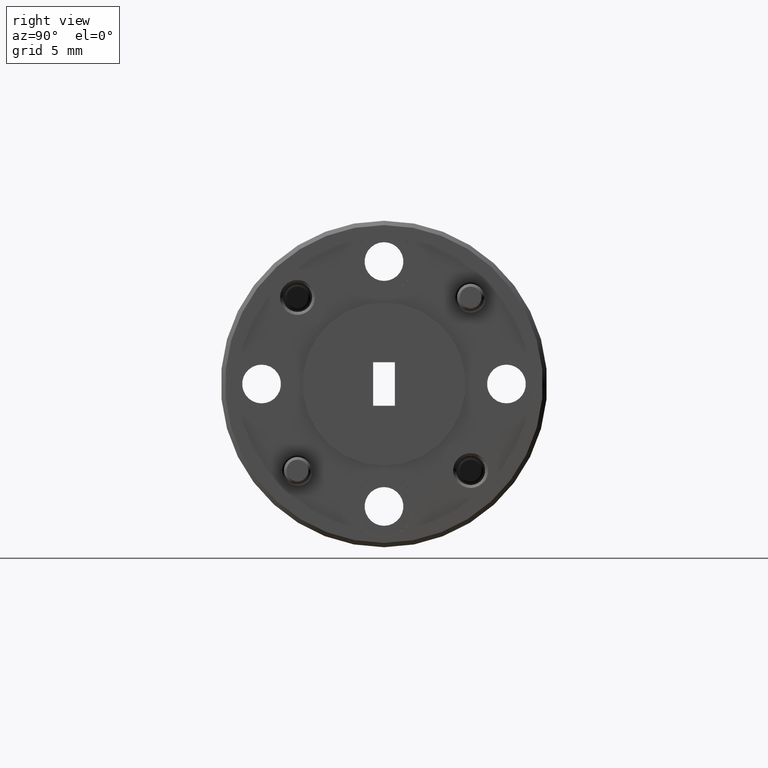
[diagram: clean part render]
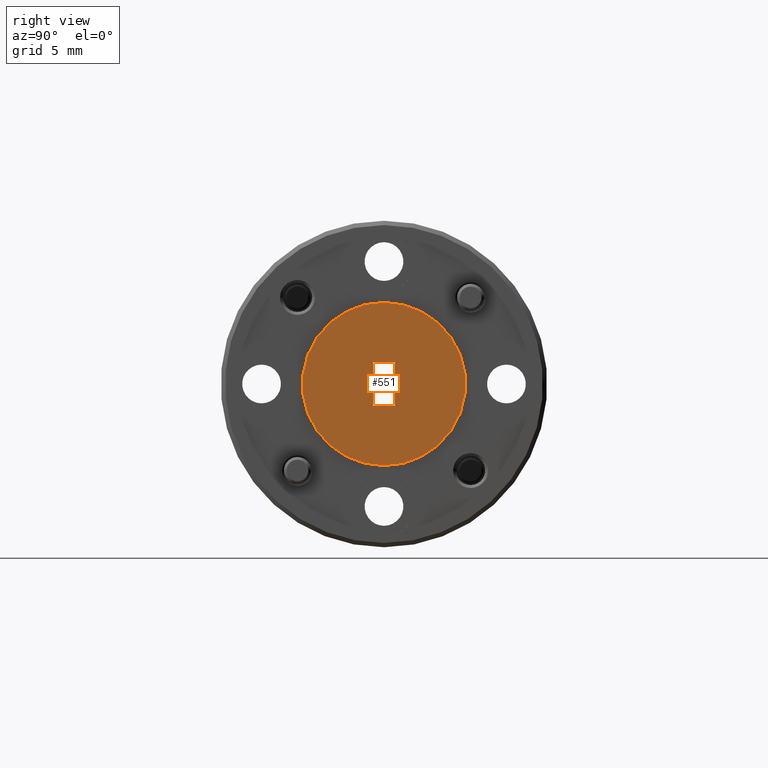
[diagram: same view with one face highlighted and labeled with its STEP entity id]
A machine part, right view. The second image highlights one B-rep face of the part: STEP entity #551.
In plain terms, the highlighted planar face has unit normal (-1, 0, 0).
Its self-contained STEP definition (entity closure, byte-faithful):
#161 = ORIENTED_EDGE ( 'NONE', *, *, #3890, .F. ) ;
#203 = AXIS2_PLACEMENT_3D ( 'NONE', #3169, #1120, #832 ) ;
#278 = DIRECTION ( 'NONE',  ( -0.0000000000000000000, -0.0000000000000000000, -1.000000000000000000 ) ) ;
#309 = LINE ( 'NONE', #2597, #506 ) ;
#337 = ORIENTED_EDGE ( 'NONE', *, *, #3629, .F. ) ;
#346 = VERTEX_POINT ( 'NONE', #1233 ) ;
#426 = VERTEX_POINT ( 'NONE', #4253 ) ;
#471 = ORIENTED_EDGE ( 'NONE', *, *, #2172, .F. ) ;
#506 = VECTOR ( 'NONE', #3289, 39.37007874015748100 ) ;
#542 = CARTESIAN_POINT ( 'NONE',  ( -2.194678697788351700, 0.8116859362712518500, 0.9374824079348078600 ) ) ;
#551 = ADVANCED_FACE ( 'NONE', ( #3674, #3619 ), #2211, .F. ) ;
#639 = ORIENTED_EDGE ( 'NONE', *, *, #1723, .F. ) ;
#655 = AXIS2_PLACEMENT_3D ( 'NONE', #3921, #1935, #1244 ) ;
#688 = EDGE_LOOP ( 'NONE', ( #471, #2057 ) ) ;
#832 = DIRECTION ( 'NONE',  ( 0.0000000000000000000, 0.0000000000000000000, 1.000000000000000000 ) ) ;
#926 = CARTESIAN_POINT ( 'NONE',  ( -2.194678697788352100, 0.7866859362712517200, 0.8874824079348078200 ) ) ;
#1120 = DIRECTION ( 'NONE',  ( -1.000000000000000000, -0.0000000000000000000, -0.0000000000000000000 ) ) ;
#1233 = CARTESIAN_POINT ( 'NONE',  ( -2.194678697788351700, 0.7616859362712518100, 0.8374824079348077700 ) ) ;
#1244 = DIRECTION ( 'NONE',  ( 0.0000000000000000000, 0.0000000000000000000, 1.000000000000000000 ) ) ;
#1340 = VECTOR ( 'NONE', #3340, 39.37007874015748100 ) ;
#1374 = CARTESIAN_POINT ( 'NONE',  ( -2.194678697788351700, 0.7866859362712517200, 0.9374824079348078600 ) ) ;
#1438 = VECTOR ( 'NONE', #2299, 39.37007874015748100 ) ;
#1543 = VERTEX_POINT ( 'NONE', #542 ) ;
#1589 = DIRECTION ( 'NONE',  ( 0.0000000000000000000, 0.0000000000000000000, 1.000000000000000000 ) ) ;
#1617 = EDGE_CURVE ( 'NONE', #346, #3863, #3087, .T. ) ;
#1627 = CARTESIAN_POINT ( 'NONE',  ( -2.194678697788352100, 0.7616859362712517000, 0.8874824079348078200 ) ) ;
#1723 = EDGE_CURVE ( 'NONE', #1543, #426, #2629, .T. ) ;
#1935 = DIRECTION ( 'NONE',  ( -1.000000000000000000, 0.0000000000000000000, 0.0000000000000000000 ) ) ;
#1992 = CARTESIAN_POINT ( 'NONE',  ( -2.194678697788351700, 0.7866859362712517200, 0.8374824079348078800 ) ) ;
#2019 = EDGE_LOOP ( 'NONE', ( #3615, #337, #639, #161 ) ) ;
#2057 = ORIENTED_EDGE ( 'NONE', *, *, #3458, .F. ) ;
#2066 = VERTEX_POINT ( 'NONE', #2722 ) ;
#2172 = EDGE_CURVE ( 'NONE', #2066, #3607, #3494, .T. ) ;
#2211 = PLANE ( 'NONE',  #655 ) ;
#2281 = CIRCLE ( 'NONE', #3353, 0.1874999999999999700 ) ;
#2299 = DIRECTION ( 'NONE',  ( 0.0000000000000000000, 1.000000000000000000, -0.0000000000000000000 ) ) ;
#2533 = DIRECTION ( 'NONE',  ( -1.000000000000000000, -0.0000000000000000000, -0.0000000000000000000 ) ) ;
#2597 = CARTESIAN_POINT ( 'NONE',  ( -2.194678697788352100, 0.8116859362712518500, 0.8874824079348078200 ) ) ;
#2629 = LINE ( 'NONE', #1374, #1340 ) ;
#2722 = CARTESIAN_POINT ( 'NONE',  ( -2.194678697788352100, 0.7866859362712517200, 1.074982407934807800 ) ) ;
#2978 = CARTESIAN_POINT ( 'NONE',  ( -2.194678697788352100, 0.7866859362712517200, 0.6999824079348078200 ) ) ;
#3087 = LINE ( 'NONE', #1992, #1438 ) ;
#3169 = CARTESIAN_POINT ( 'NONE',  ( -2.194678697788352100, 0.7866859362712517200, 0.8874824079348078200 ) ) ;
#3171 = LINE ( 'NONE', #1627, #4275 ) ;
#3289 = DIRECTION ( 'NONE',  ( 0.0000000000000000000, 0.0000000000000000000, 1.000000000000000000 ) ) ;
#3340 = DIRECTION ( 'NONE',  ( -0.0000000000000000000, -1.000000000000000000, -0.0000000000000000000 ) ) ;
#3353 = AXIS2_PLACEMENT_3D ( 'NONE', #926, #2533, #1589 ) ;
#3458 = EDGE_CURVE ( 'NONE', #3607, #2066, #2281, .T. ) ;
#3494 = CIRCLE ( 'NONE', #203, 0.1874999999999999700 ) ;
#3607 = VERTEX_POINT ( 'NONE', #2978 ) ;
#3615 = ORIENTED_EDGE ( 'NONE', *, *, #1617, .F. ) ;
#3619 = FACE_OUTER_BOUND ( 'NONE', #688, .T. ) ;
#3629 = EDGE_CURVE ( 'NONE', #426, #346, #3171, .T. ) ;
#3674 = FACE_BOUND ( 'NONE', #2019, .T. ) ;
#3863 = VERTEX_POINT ( 'NONE', #3903 ) ;
#3890 = EDGE_CURVE ( 'NONE', #3863, #1543, #309, .T. ) ;
#3903 = CARTESIAN_POINT ( 'NONE',  ( -2.194678697788351700, 0.8116859362712518500, 0.8374824079348077700 ) ) ;
#3921 = CARTESIAN_POINT ( 'NONE',  ( -2.194678697788352100, 0.9741859362712517200, 0.8874824079348078200 ) ) ;
#4253 = CARTESIAN_POINT ( 'NONE',  ( -2.194678697788351700, 0.7616859362712518100, 0.9374824079348078600 ) ) ;
#4275 = VECTOR ( 'NONE', #278, 39.37007874015748100 ) ;